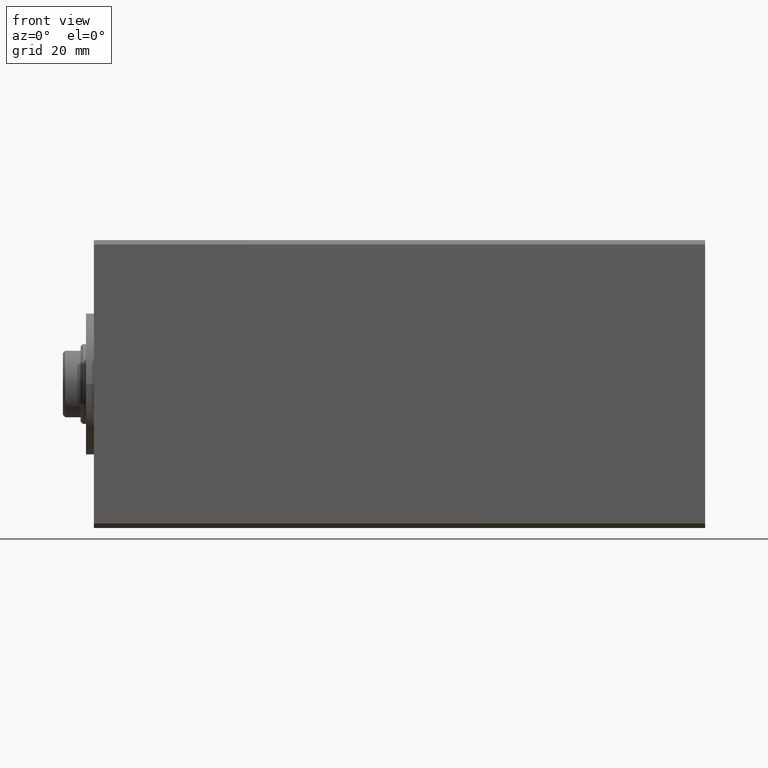
[diagram: clean part render]
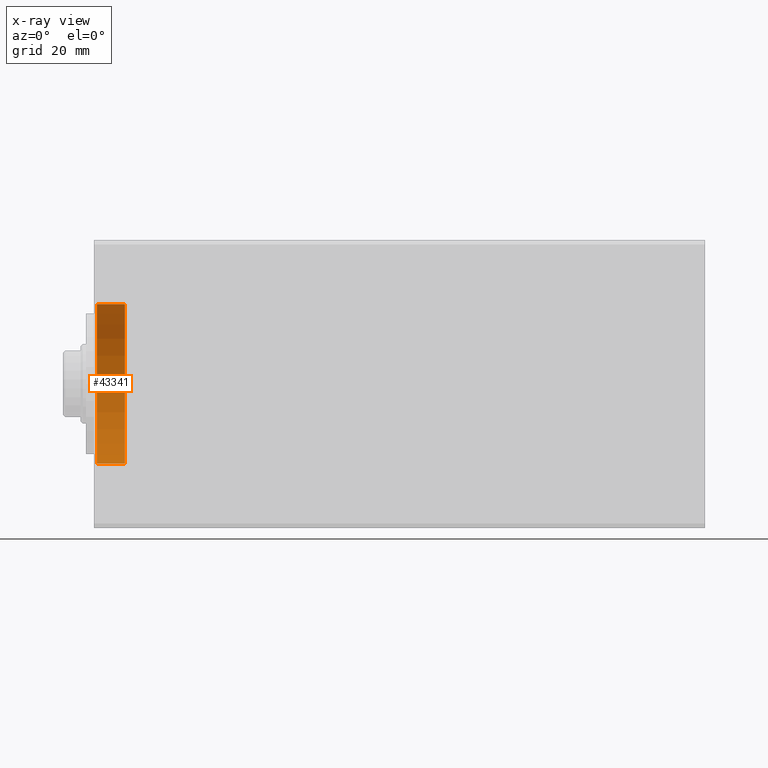
[diagram: x-ray — body ghosted, one internal face saturated and labeled with its STEP entity id]
A machine part, front view, then the same camera in x-ray: the body is ghosted and one INTERNAL B-rep face — a face not visible from any outside direction — is saturated and labeled: STEP entity #43341.
In plain terms, the highlighted cylindrical surface (partial cylindrical patch) has radius 18 mm, axis along (-1, -0, -0).
Its self-contained STEP definition (entity closure, byte-faithful):
#535 = DIRECTION ( 'NONE',  ( 0.000000000000000000, 0.000000000000000000, -1.000000000000000000 ) ) ;
#3221 = LINE ( 'NONE', #40706, #18530 ) ;
#3486 = FACE_OUTER_BOUND ( 'NONE', #11081, .T. ) ;
#4338 = CARTESIAN_POINT ( 'NONE',  ( 0.7000000000000027311, 0.000000000000000000, 0.000000000000000000 ) ) ;
#4442 = EDGE_CURVE ( 'NONE', #18444, #29153, #13583, .T. ) ;
#5332 = CARTESIAN_POINT ( 'NONE',  ( 7.000000000000000000, 0.000000000000000000, 18.00000000000000000 ) ) ;
#7105 = ORIENTED_EDGE ( 'NONE', *, *, #4442, .T. ) ;
#9504 = CYLINDRICAL_SURFACE ( 'NONE', #21874, 18.00000000000000000 ) ;
#10033 = CARTESIAN_POINT ( 'NONE',  ( 0.7000000000000027311, 0.000000000000000000, 18.00000000000000000 ) ) ;
#10385 = DIRECTION ( 'NONE',  ( -1.000000000000000000, -0.000000000000000000, -0.000000000000000000 ) ) ;
#11081 = EDGE_LOOP ( 'NONE', ( #12937, #41526, #7105, #25339 ) ) ;
#12880 = DIRECTION ( 'NONE',  ( 0.000000000000000000, 0.000000000000000000, 1.000000000000000000 ) ) ;
#12937 = ORIENTED_EDGE ( 'NONE', *, *, #27817, .F. ) ;
#13583 = LINE ( 'NONE', #23379, #21118 ) ;
#14881 = AXIS2_PLACEMENT_3D ( 'NONE', #4338, #27974, #535 ) ;
#15728 = AXIS2_PLACEMENT_3D ( 'NONE', #36743, #43869, #12880 ) ;
#15771 = EDGE_CURVE ( 'NONE', #18444, #35977, #42115, .T. ) ;
#18444 = VERTEX_POINT ( 'NONE', #5332 ) ;
#18530 = VECTOR ( 'NONE', #23731, 1000.000000000000000 ) ;
#21118 = VECTOR ( 'NONE', #37004, 1000.000000000000000 ) ;
#21596 = EDGE_CURVE ( 'NONE', #29153, #30683, #26269, .T. ) ;
#21874 = AXIS2_PLACEMENT_3D ( 'NONE', #30698, #10385, #37616 ) ;
#23379 = CARTESIAN_POINT ( 'NONE',  ( 7.000000000000000000, 0.000000000000000000, 18.00000000000000000 ) ) ;
#23731 = DIRECTION ( 'NONE',  ( -1.000000000000000000, -0.000000000000000000, -0.000000000000000000 ) ) ;
#25339 = ORIENTED_EDGE ( 'NONE', *, *, #21596, .T. ) ;
#26269 = CIRCLE ( 'NONE', #14881, 18.00000000000000000 ) ;
#27817 = EDGE_CURVE ( 'NONE', #35977, #30683, #3221, .T. ) ;
#27974 = DIRECTION ( 'NONE',  ( -1.000000000000000000, 0.000000000000000000, 0.000000000000000000 ) ) ;
#29098 = CARTESIAN_POINT ( 'NONE',  ( 7.000000000000000000, 2.204364238465235428E-15, -18.00000000000000000 ) ) ;
#29153 = VERTEX_POINT ( 'NONE', #10033 ) ;
#30683 = VERTEX_POINT ( 'NONE', #37483 ) ;
#30698 = CARTESIAN_POINT ( 'NONE',  ( 7.000000000000000000, 0.000000000000000000, 0.000000000000000000 ) ) ;
#35977 = VERTEX_POINT ( 'NONE', #29098 ) ;
#36743 = CARTESIAN_POINT ( 'NONE',  ( 7.000000000000000000, 0.000000000000000000, 0.000000000000000000 ) ) ;
#37004 = DIRECTION ( 'NONE',  ( -1.000000000000000000, -0.000000000000000000, -0.000000000000000000 ) ) ;
#37483 = CARTESIAN_POINT ( 'NONE',  ( 0.7000000000000027311, 2.204364238465235428E-15, -18.00000000000000000 ) ) ;
#37616 = DIRECTION ( 'NONE',  ( 0.000000000000000000, 0.000000000000000000, 1.000000000000000000 ) ) ;
#40706 = CARTESIAN_POINT ( 'NONE',  ( 7.000000000000000000, 2.204364238465235428E-15, -18.00000000000000000 ) ) ;
#41526 = ORIENTED_EDGE ( 'NONE', *, *, #15771, .F. ) ;
#42115 = CIRCLE ( 'NONE', #15728, 18.00000000000000000 ) ;
#43341 = ADVANCED_FACE ( 'NONE', ( #3486 ), #9504, .F. ) ;
#43869 = DIRECTION ( 'NONE',  ( -1.000000000000000000, 0.000000000000000000, 0.000000000000000000 ) ) ;